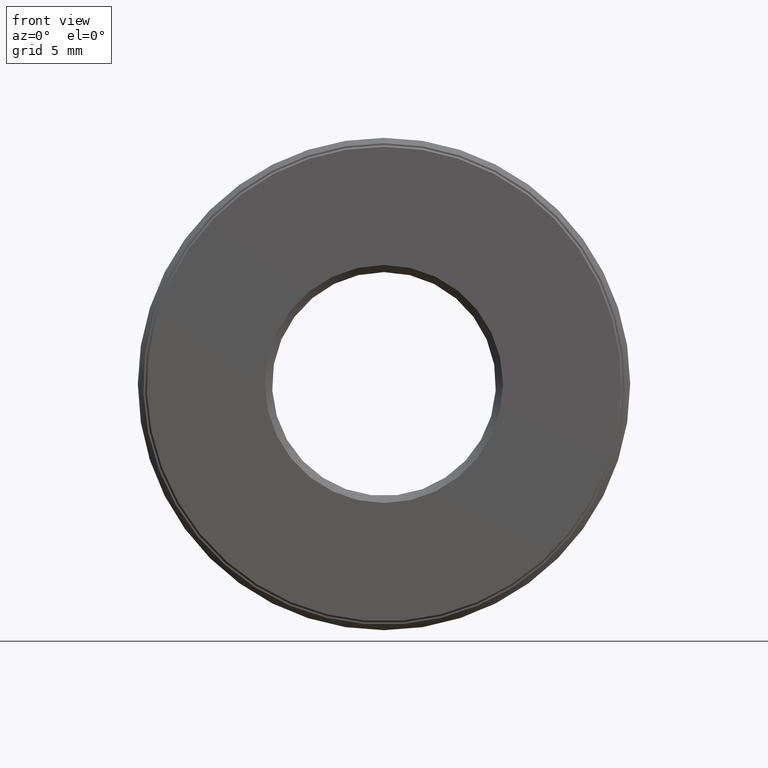
[diagram: clean part render]
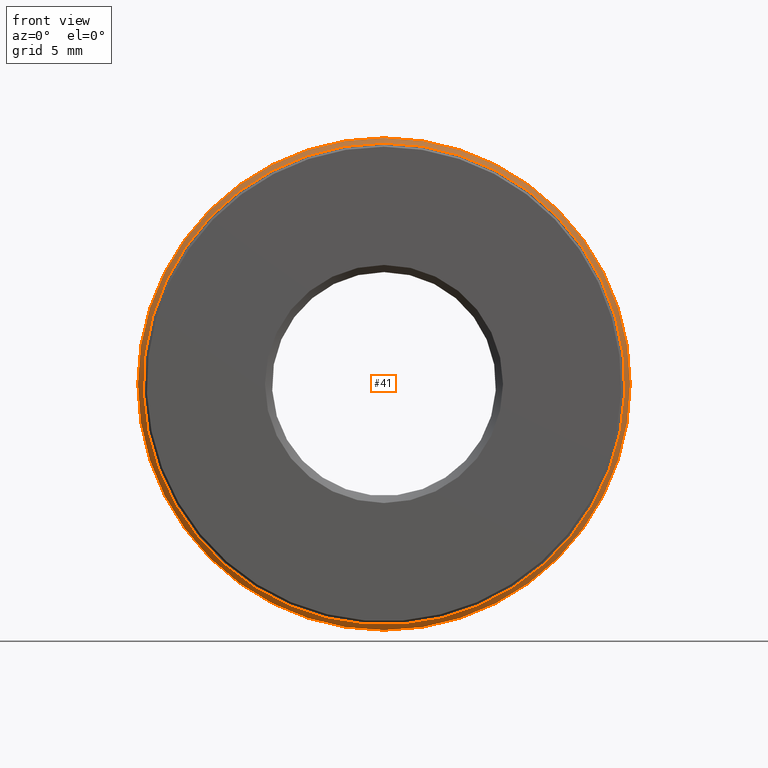
[diagram: same view with one face highlighted and labeled with its STEP entity id]
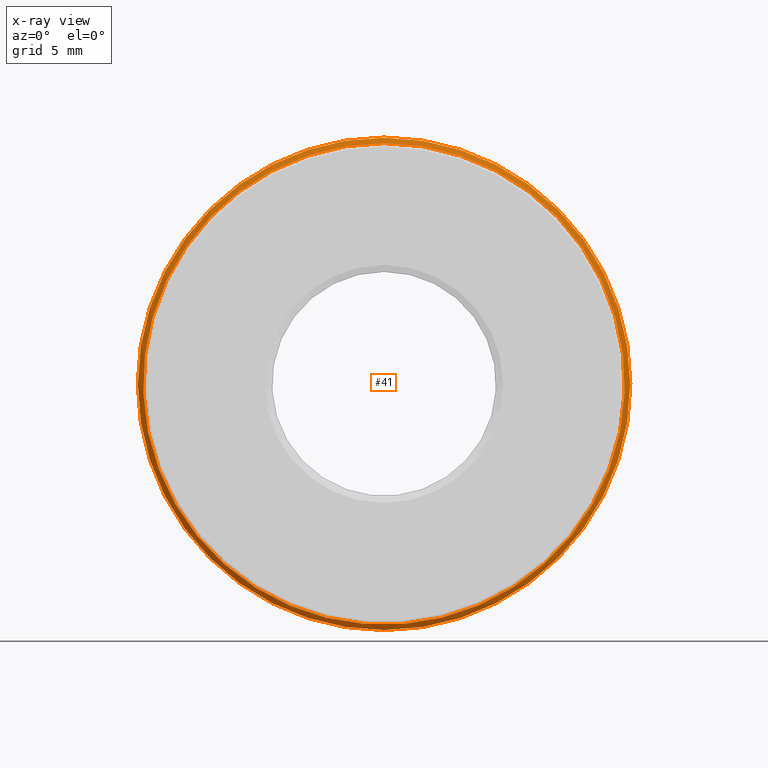
[diagram: x-ray of the same camera — body ghosted, the highlighted face saturated]
A machine part, front view. The second image highlights one B-rep face of the part: STEP entity #41.
The next image is the same camera in x-ray: the body ghosted, the highlighted face saturated — about 0% of this face is hidden behind the body in this view.
In plain terms, the highlighted conical surface has half-angle 45 deg.
Its self-contained STEP definition (entity closure, byte-faithful):
#27 = EDGE_LOOP ( 'NONE', ( #425 ) ) ;
#39 = DIRECTION ( 'NONE',  ( -0.0000000000000000000, 1.000000000000000000, -0.0000000000000000000 ) ) ;
#41 = ADVANCED_FACE ( 'NONE', ( #441, #102 ), #43, .T. ) ;
#43 = CONICAL_SURFACE ( 'NONE', #599, 0.6724999999999999900, 0.7853981633974466100 ) ;
#60 = EDGE_LOOP ( 'NONE', ( #237 ) ) ;
#99 = EDGE_CURVE ( 'NONE', #272, #272, #553, .T. ) ;
#102 = FACE_BOUND ( 'NONE', #27, .T. ) ;
#126 = DIRECTION ( 'NONE',  ( -0.0000000000000000000, 1.000000000000000000, -0.0000000000000000000 ) ) ;
#151 = CARTESIAN_POINT ( 'NONE',  ( 0.0000000000000000000, -4.908789363615472800E-017, 0.6724999999999999900 ) ) ;
#162 = EDGE_CURVE ( 'NONE', #368, #368, #543, .T. ) ;
#186 = AXIS2_PLACEMENT_3D ( 'NONE', #312, #126, #212 ) ;
#212 = DIRECTION ( 'NONE',  ( 0.0000000000000000000, 0.0000000000000000000, 1.000000000000000000 ) ) ;
#216 = DIRECTION ( 'NONE',  ( 0.0000000000000000000, 0.0000000000000000000, 1.000000000000000000 ) ) ;
#237 = ORIENTED_EDGE ( 'NONE', *, *, #162, .F. ) ;
#272 = VERTEX_POINT ( 'NONE', #151 ) ;
#274 = DIRECTION ( 'NONE',  ( 0.0000000000000000000, 0.0000000000000000000, 1.000000000000000000 ) ) ;
#312 = CARTESIAN_POINT ( 'NONE',  ( 0.0000000000000000000, -4.908789363615472800E-017, 0.0000000000000000000 ) ) ;
#368 = VERTEX_POINT ( 'NONE', #432 ) ;
#404 = CARTESIAN_POINT ( 'NONE',  ( 0.0000000000000000000, -4.908789363615472800E-017, 0.0000000000000000000 ) ) ;
#425 = ORIENTED_EDGE ( 'NONE', *, *, #99, .T. ) ;
#432 = CARTESIAN_POINT ( 'NONE',  ( 0.0000000000000000000, 0.01499999999999997700, 0.6875000000000000000 ) ) ;
#433 = AXIS2_PLACEMENT_3D ( 'NONE', #488, #39, #274 ) ;
#441 = FACE_OUTER_BOUND ( 'NONE', #60, .T. ) ;
#488 = CARTESIAN_POINT ( 'NONE',  ( 0.0000000000000000000, 0.01499999999999997700, 0.0000000000000000000 ) ) ;
#493 = DIRECTION ( 'NONE',  ( -0.0000000000000000000, 1.000000000000000000, -0.0000000000000000000 ) ) ;
#543 = CIRCLE ( 'NONE', #433, 0.6875000000000000000 ) ;
#553 = CIRCLE ( 'NONE', #186, 0.6724999999999999900 ) ;
#599 = AXIS2_PLACEMENT_3D ( 'NONE', #404, #493, #216 ) ;